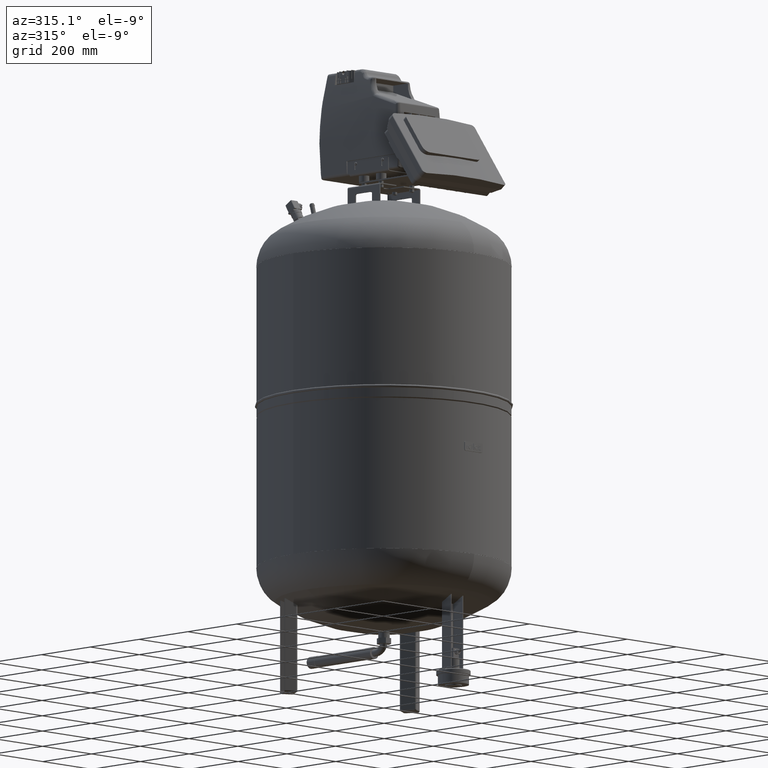
[diagram: clean part render]
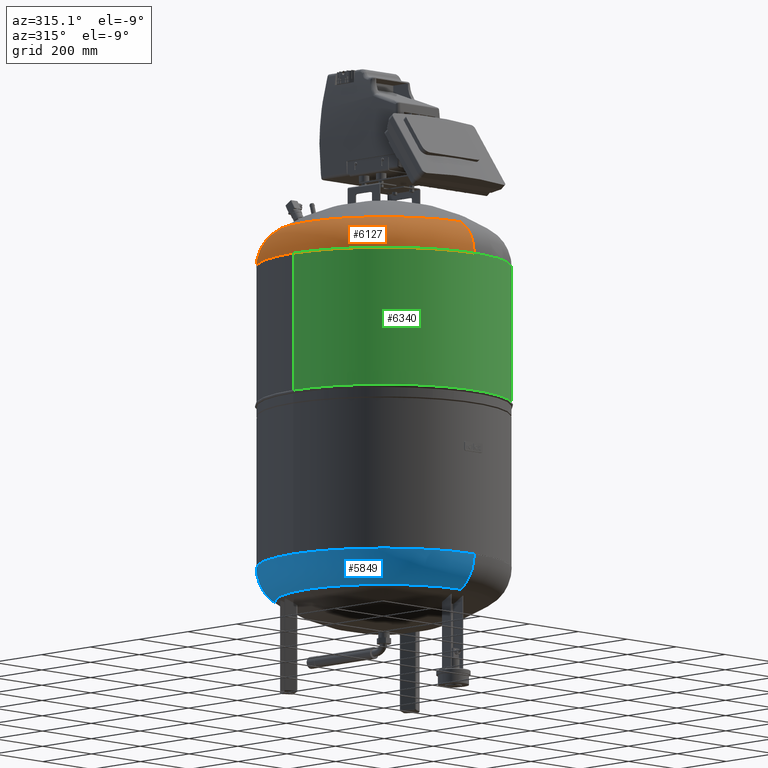
[diagram: same view with three faces highlighted in distinct colors, each labeled with its STEP entity id]
A machine part, auxiliary view with three faces highlighted in distinct colors.
Their STEP definitions:

[orange] entity #6127 — the highlighted toroidal blend (fillet) surface has major radius 254.5 mm and minor (blend) radius 115.5 mm.
#5977=CARTESIAN_POINT('',(-370.0,1.062956E-014,1261.2061203881306));
#5978=VERTEX_POINT('',#5977);
#5985=CARTESIAN_POINT('',(2.218985E-014,369.99999999999994,1261.2061203881303));
#5986=VERTEX_POINT('',#5985);
#5987=CARTESIAN_POINT('',(-2.312058E-014,-3.468087E-014,1261.2061203881306));
#5988=DIRECTION('',(0.0,0.0,-1.0));
#5989=DIRECTION('',(1.0,0.0,0.0));
#5990=AXIS2_PLACEMENT_3D('',#5987,#5988,#5989);
#5991=CIRCLE('',#5990,370.0);
#5992=EDGE_CURVE('',#5978,#5986,#5991,.T.);
#6009=CARTESIAN_POINT('',(-2.312058E-014,-370.00000000000006,1261.2061203881306));
#6010=VERTEX_POINT('',#6009);
#6011=CARTESIAN_POINT('',(-1.114251E-014,-315.93103448275861,1359.0144942749205));
#6012=VERTEX_POINT('',#6011);
#6013=CARTESIAN_POINT('',(-2.312058E-014,-254.50000000000006,1261.2061203881303));
#6014=DIRECTION('',(-1.0,0.0,0.0));
#6015=DIRECTION('',(0.0,-1.0,0.0));
#6016=AXIS2_PLACEMENT_3D('',#6013,#6014,#6015);
#6017=CIRCLE('',#6016,115.5);
#6018=EDGE_CURVE('',#6010,#6012,#6017,.T.);
#6028=CARTESIAN_POINT('',(2.754660E-014,315.93103448275861,1359.0144942749203));
#6029=VERTEX_POINT('',#6028);
#6030=CARTESIAN_POINT('',(8.045650E-015,254.5,1261.2061203881303));
#6031=DIRECTION('',(1.0,0.0,0.0));
#6032=DIRECTION('',(0.0,1.0,0.0));
#6033=AXIS2_PLACEMENT_3D('',#6030,#6031,#6032);
#6034=CIRCLE('',#6033,115.5);
#6035=EDGE_CURVE('',#5986,#6029,#6034,.T.);
#6070=CARTESIAN_POINT('',(-315.93103448275861,-1.478051E-013,1359.0144942749203));
#6071=VERTEX_POINT('',#6070);
#6079=CARTESIAN_POINT('',(-1.114251E-014,-1.671377E-014,1359.0144942749205));
#6080=DIRECTION('',(0.0,0.0,-1.0));
#6081=DIRECTION('',(1.0,0.0,0.0));
#6082=AXIS2_PLACEMENT_3D('',#6079,#6080,#6081);
#6083=CIRCLE('',#6082,315.93103448275861);
#6084=EDGE_CURVE('',#6012,#6071,#6083,.T.);
#6097=CARTESIAN_POINT('',(-1.114251E-014,-1.671377E-014,1359.0144942749205));
#6098=DIRECTION('',(0.0,0.0,-1.0));
#6099=DIRECTION('',(1.0,0.0,0.0));
#6100=AXIS2_PLACEMENT_3D('',#6097,#6098,#6099);
#6101=CIRCLE('',#6100,315.93103448275861);
#6102=EDGE_CURVE('',#6071,#6029,#6101,.T.);
#6108=CARTESIAN_POINT('',(-2.312058E-014,-3.468087E-014,1261.2061203881303));
#6109=DIRECTION('',(-1.224647E-016,-1.836970E-016,-1.0));
#6110=DIRECTION('',(0.0,-1.0,0.0));
#6111=AXIS2_PLACEMENT_3D('',#6108,#6109,#6110);
#6112=TOROIDAL_SURFACE('',#6111,254.50000000000003,115.5);
#6113=ORIENTED_EDGE('',*,*,#6018,.T.);
#6114=ORIENTED_EDGE('',*,*,#6084,.T.);
#6115=ORIENTED_EDGE('',*,*,#6102,.T.);
#6116=ORIENTED_EDGE('',*,*,#6035,.F.);
#6117=ORIENTED_EDGE('',*,*,#5992,.F.);
#6118=CARTESIAN_POINT('',(-2.312058E-014,-3.468087E-014,1261.2061203881306));
#6119=DIRECTION('',(0.0,0.0,-1.0));
#6120=DIRECTION('',(1.0,0.0,0.0));
#6121=AXIS2_PLACEMENT_3D('',#6118,#6119,#6120);
#6122=CIRCLE('',#6121,370.0);
#6123=EDGE_CURVE('',#6010,#5978,#6122,.T.);
#6124=ORIENTED_EDGE('',*,*,#6123,.F.);
#6125=EDGE_LOOP('',(#6113,#6114,#6115,#6116,#6117,#6124));
#6126=FACE_OUTER_BOUND('',#6125,.T.);
#6127=ADVANCED_FACE('',(#6126),#6112,.T.);

[blue] entity #5849 — the highlighted toroidal blend (fillet) surface has major radius 254.5 mm and minor (blend) radius 115.5 mm.
#5754=CARTESIAN_POINT('',(-370.0,-3.468087E-014,378.79387961186956));
#5755=VERTEX_POINT('',#5754);
#5779=CARTESIAN_POINT('',(-4.531044E-014,369.99999999999994,378.79387961186961));
#5780=VERTEX_POINT('',#5779);
#5788=CARTESIAN_POINT('',(0.0,-3.468087E-014,378.79387961186956));
#5789=DIRECTION('',(0.0,0.0,1.0));
#5790=DIRECTION('',(-1.0,0.0,0.0));
#5791=AXIS2_PLACEMENT_3D('',#5788,#5789,#5790);
#5792=CIRCLE('',#5791,370.0);
#5793=EDGE_CURVE('',#5780,#5755,#5792,.T.);
#5798=CARTESIAN_POINT('',(0.0,-3.468087E-014,378.79387961186956));
#5799=DIRECTION('',(0.0,-1.836970E-016,1.0));
#5800=DIRECTION('',(0.0,-1.0,0.0));
#5801=AXIS2_PLACEMENT_3D('',#5798,#5799,#5800);
#5802=TOROIDAL_SURFACE('',#5801,254.50000000000003,115.5);
#5803=CARTESIAN_POINT('',(0.0,-370.00000000000006,378.7938796118695));
#5804=VERTEX_POINT('',#5803);
#5805=CARTESIAN_POINT('',(0.0,-315.93103448275861,280.98550572507941));
#5806=VERTEX_POINT('',#5805);
#5807=CARTESIAN_POINT('',(0.0,-254.50000000000006,378.7938796118695));
#5808=DIRECTION('',(1.0,0.0,0.0));
#5809=DIRECTION('',(0.0,-1.0,0.0));
#5810=AXIS2_PLACEMENT_3D('',#5807,#5808,#5809);
#5811=CIRCLE('',#5810,115.5);
#5812=EDGE_CURVE('',#5804,#5806,#5811,.T.);
#5813=ORIENTED_EDGE('',*,*,#5812,.F.);
#5814=CARTESIAN_POINT('',(0.0,-3.468087E-014,378.79387961186956));
#5815=DIRECTION('',(0.0,0.0,1.0));
#5816=DIRECTION('',(-1.0,0.0,0.0));
#5817=AXIS2_PLACEMENT_3D('',#5814,#5815,#5816);
#5818=CIRCLE('',#5817,370.0);
#5819=EDGE_CURVE('',#5755,#5804,#5818,.T.);
#5820=ORIENTED_EDGE('',*,*,#5819,.F.);
#5821=ORIENTED_EDGE('',*,*,#5793,.F.);
#5822=CARTESIAN_POINT('',(-3.868912E-014,315.93103448275861,280.98550572507963));
#5823=VERTEX_POINT('',#5822);
#5824=CARTESIAN_POINT('',(-3.116623E-014,254.5,378.79387961186961));
#5825=DIRECTION('',(-1.0,0.0,0.0));
#5826=DIRECTION('',(0.0,1.0,0.0));
#5827=AXIS2_PLACEMENT_3D('',#5824,#5825,#5826);
#5828=CIRCLE('',#5827,115.5);
#5829=EDGE_CURVE('',#5780,#5823,#5828,.T.);
#5830=ORIENTED_EDGE('',*,*,#5829,.T.);
#5831=CARTESIAN_POINT('',(-315.93103448275861,-1.671377E-014,280.98550572507952));
#5832=VERTEX_POINT('',#5831);
#5833=CARTESIAN_POINT('',(0.0,-1.671377E-014,280.98550572507952));
#5834=DIRECTION('',(0.0,0.0,1.0));
#5835=DIRECTION('',(-1.0,0.0,0.0));
#5836=AXIS2_PLACEMENT_3D('',#5833,#5834,#5835);
#5837=CIRCLE('',#5836,315.93103448275861);
#5838=EDGE_CURVE('',#5823,#5832,#5837,.T.);
#5839=ORIENTED_EDGE('',*,*,#5838,.T.);
#5840=CARTESIAN_POINT('',(0.0,-1.671377E-014,280.98550572507952));
#5841=DIRECTION('',(0.0,0.0,1.0));
#5842=DIRECTION('',(-1.0,0.0,0.0));
#5843=AXIS2_PLACEMENT_3D('',#5840,#5841,#5842);
#5844=CIRCLE('',#5843,315.93103448275861);
#5845=EDGE_CURVE('',#5832,#5806,#5844,.T.);
#5846=ORIENTED_EDGE('',*,*,#5845,.T.);
#5847=EDGE_LOOP('',(#5813,#5820,#5821,#5830,#5839,#5846));
#5848=FACE_OUTER_BOUND('',#5847,.T.);
#5849=ADVANCED_FACE('',(#5848),#5802,.T.);

[green] entity #6340 — the highlighted cylindrical surface (partial cylindrical patch) has radius 370 mm, axis along (-0, 0, -1).
#6280=CARTESIAN_POINT('',(-369.99999999999972,0.0,859.40000000000009));
#6281=VERTEX_POINT('',#6280);
#6290=CARTESIAN_POINT('',(369.99999999999989,-4.531044E-014,859.39999999999998));
#6291=VERTEX_POINT('',#6290);
#6299=CARTESIAN_POINT('',(6.316051E-015,0.0,859.39999999999998));
#6300=DIRECTION('',(0.0,0.0,-1.0));
#6301=DIRECTION('',(-1.0,0.0,0.0));
#6302=AXIS2_PLACEMENT_3D('',#6299,#6300,#6301);
#6303=CIRCLE('',#6302,369.99999999999972);
#6304=EDGE_CURVE('',#6291,#6281,#6303,.T.);
#6309=CARTESIAN_POINT('',(3.850547E-014,0.0,1060.2));
#6310=DIRECTION('',(-1.603059E-016,0.0,-1.0));
#6311=DIRECTION('',(-1.0,0.0,0.0));
#6312=AXIS2_PLACEMENT_3D('',#6309,#6310,#6311);
#6313=CYLINDRICAL_SURFACE('',#6312,369.99999999999989);
#6314=CARTESIAN_POINT('',(-369.99999999999989,0.0,1261.0000000000002));
#6315=VERTEX_POINT('',#6314);
#6316=CARTESIAN_POINT('',(-369.99999999999989,0.0,859.40000000000009));
#6317=DIRECTION('',(0.0,0.0,1.0));
#6318=VECTOR('',#6317,401.60000000000014);
#6319=LINE('',#6316,#6318);
#6320=EDGE_CURVE('',#6281,#6315,#6319,.T.);
#6321=ORIENTED_EDGE('',*,*,#6320,.F.);
#6322=ORIENTED_EDGE('',*,*,#6304,.F.);
#6323=CARTESIAN_POINT('',(370.0,-4.531044E-014,1261.0000000000002));
#6324=VERTEX_POINT('',#6323);
#6325=CARTESIAN_POINT('',(369.99999999999989,-4.531044E-014,859.39999999999998));
#6326=DIRECTION('',(0.0,0.0,1.0));
#6327=VECTOR('',#6326,401.60000000000025);
#6328=LINE('',#6325,#6327);
#6329=EDGE_CURVE('',#6291,#6324,#6328,.T.);
#6330=ORIENTED_EDGE('',*,*,#6329,.T.);
#6331=CARTESIAN_POINT('',(7.069489E-014,0.0,1261.0000000000002));
#6332=DIRECTION('',(0.0,0.0,-1.0));
#6333=DIRECTION('',(-1.0,0.0,0.0));
#6334=AXIS2_PLACEMENT_3D('',#6331,#6332,#6333);
#6335=CIRCLE('',#6334,369.99999999999994);
#6336=EDGE_CURVE('',#6324,#6315,#6335,.T.);
#6337=ORIENTED_EDGE('',*,*,#6336,.T.);
#6338=EDGE_LOOP('',(#6321,#6322,#6330,#6337));
#6339=FACE_OUTER_BOUND('',#6338,.T.);
#6340=ADVANCED_FACE('',(#6339),#6313,.T.);